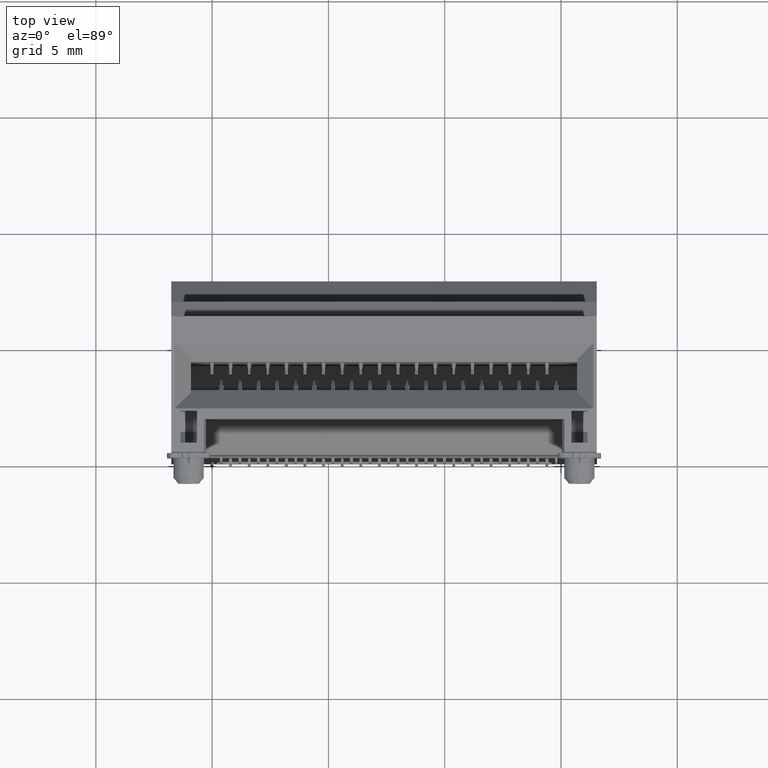
[diagram: clean part render]
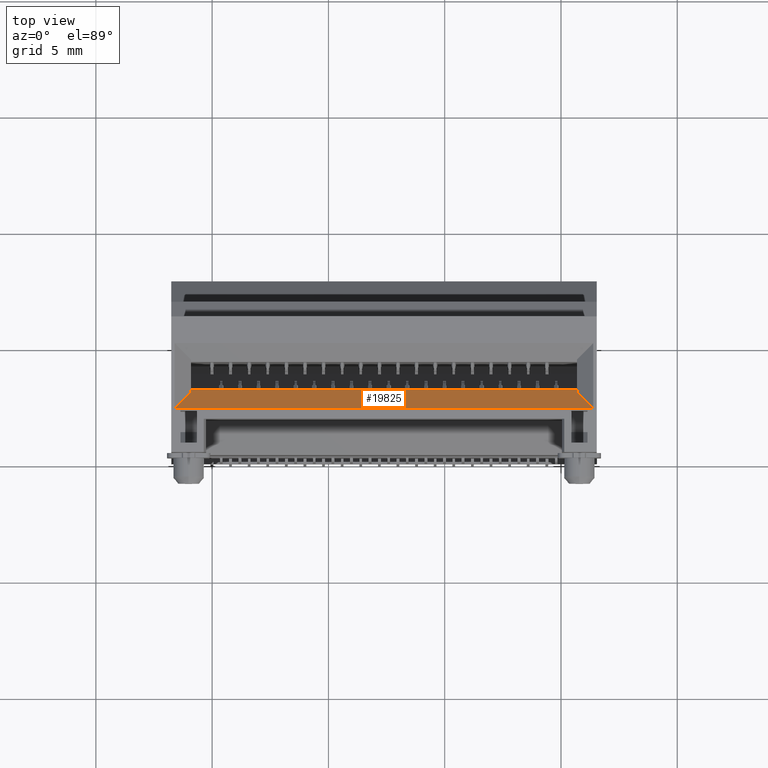
[diagram: same view with one face highlighted and labeled with its STEP entity id]
A machine part, top view. The second image highlights one B-rep face of the part: STEP entity #19825.
In plain terms, the highlighted planar face has unit normal (0, -0.7071, -0.7071).
Its self-contained STEP definition (entity closure, byte-faithful):
#6 = DIRECTION ( 'NONE',  ( -0.5773502691896247319, -0.5773502691896277295, 0.5773502691896247319 ) ) ;
#2566 = EDGE_CURVE ( 'NONE', #10589, #49674, #18752, .T. ) ;
#5256 = ORIENTED_EDGE ( 'NONE', *, *, #2566, .F. ) ;
#5684 = CARTESIAN_POINT ( 'NONE',  ( -10.47332802173360022, 3.231666666666670018, 7.863333333333329733 ) ) ;
#7547 = DIRECTION ( 'NONE',  ( 1.000000000000000000, 1.306267677693377761E-16, -9.479363256703868881E-17 ) ) ;
#7594 = EDGE_CURVE ( 'NONE', #10589, #9025, #49179, .T. ) ;
#8244 = ORIENTED_EDGE ( 'NONE', *, *, #61417, .T. ) ;
#9025 = VERTEX_POINT ( 'NONE', #66196 ) ;
#10589 = VERTEX_POINT ( 'NONE', #34548 ) ;
#11247 = LINE ( 'NONE', #37710, #16852 ) ;
#12222 = VECTOR ( 'NONE', #29599, 1000.000000000000000 ) ;
#12905 = CARTESIAN_POINT ( 'NONE',  ( -10.90999468840028008, 2.795000000000000373, 8.300000000000000711 ) ) ;
#13171 = VECTOR ( 'NONE', #66999, 1000.000000000000000 ) ;
#13717 = ORIENTED_EDGE ( 'NONE', *, *, #49860, .F. ) ;
#14953 = CARTESIAN_POINT ( 'NONE',  ( 5.690005311599730220, 2.895000000000000018, 8.200000000000001066 ) ) ;
#14994 = LINE ( 'NONE', #19177, #13171 ) ;
#16852 = VECTOR ( 'NONE', #7547, 1000.000000000000000 ) ;
#17130 = DIRECTION ( 'NONE',  ( -0.5773502691896257311, 0.5773502691896278405, -0.5773502691896238437 ) ) ;
#17615 = CARTESIAN_POINT ( 'NONE',  ( 5.253338644933060131, 3.231666666666675347, 7.863333333333329733 ) ) ;
#17821 = LINE ( 'NONE', #65817, #12222 ) ;
#18350 = ORIENTED_EDGE ( 'NONE', *, *, #18869, .F. ) ;
#18752 = LINE ( 'NONE', #54592, #30789 ) ;
#18869 = EDGE_CURVE ( 'NONE', #59336, #53057, #11247, .T. ) ;
#18978 = CARTESIAN_POINT ( 'NONE',  ( -10.90999468840028008, 2.895000000000000018, 8.200000000000001066 ) ) ;
#19177 = CARTESIAN_POINT ( 'NONE',  ( 5.690005311599709792, 9.150000000000000355, 1.945000000000034701 ) ) ;
#19825 = ADVANCED_FACE ( 'NONE', ( #66662 ), #23052, .F. ) ;
#20424 = VECTOR ( 'NONE', #17130, 1000.000000000000114 ) ;
#23052 = PLANE ( 'NONE',  #34785 ) ;
#29599 = DIRECTION ( 'NONE',  ( 0.0000000000000000000, 0.7071067811865500152, -0.7071067811865450192 ) ) ;
#30789 = VECTOR ( 'NONE', #48429, 1000.000000000000000 ) ;
#34548 = CARTESIAN_POINT ( 'NONE',  ( 6.390005311599730398, 2.095000000000000195, 9.000000000000000000 ) ) ;
#34785 = AXIS2_PLACEMENT_3D ( 'NONE', #65208, #47658, #60038 ) ;
#35243 = CARTESIAN_POINT ( 'NONE',  ( -11.60999468840027937, 2.095000000000000195, 9.000000000000000000 ) ) ;
#37710 = CARTESIAN_POINT ( 'NONE',  ( -10.90999468840026054, 2.895000000000000018, 8.200000000000001066 ) ) ;
#38146 = VECTOR ( 'NONE', #6, 1000.000000000000227 ) ;
#41758 = VERTEX_POINT ( 'NONE', #12905 ) ;
#42655 = EDGE_CURVE ( 'NONE', #41758, #59336, #17821, .T. ) ;
#47658 = DIRECTION ( 'NONE',  ( 2.533785289271959578E-17, -0.7071067811865450192, -0.7071067811865500152 ) ) ;
#48429 = DIRECTION ( 'NONE',  ( -1.000000000000000000, -1.306267677693377761E-16, 9.479363256703868881E-17 ) ) ;
#49179 = LINE ( 'NONE', #17615, #20424 ) ;
#49674 = VERTEX_POINT ( 'NONE', #35243 ) ;
#49860 = EDGE_CURVE ( 'NONE', #53057, #9025, #14994, .T. ) ;
#50193 = ORIENTED_EDGE ( 'NONE', *, *, #42655, .F. ) ;
#53057 = VERTEX_POINT ( 'NONE', #14953 ) ;
#53898 = LINE ( 'NONE', #5684, #38146 ) ;
#54592 = CARTESIAN_POINT ( 'NONE',  ( -11.75999468840026019, 2.095000000000000195, 9.000000000000000000 ) ) ;
#59336 = VERTEX_POINT ( 'NONE', #18978 ) ;
#60038 = DIRECTION ( 'NONE',  ( 0.0000000000000000000, -0.7071067811865500152, 0.7071067811865450192 ) ) ;
#61417 = EDGE_CURVE ( 'NONE', #41758, #49674, #53898, .T. ) ;
#65208 = CARTESIAN_POINT ( 'NONE',  ( -10.90999468840026054, 2.895000000000000018, 8.200000000000001066 ) ) ;
#65817 = CARTESIAN_POINT ( 'NONE',  ( -10.90999468840028008, 9.150000000000000355, 1.945000000000039808 ) ) ;
#66196 = CARTESIAN_POINT ( 'NONE',  ( 5.690005311599730220, 2.795000000000000373, 8.300000000000000711 ) ) ;
#66662 = FACE_OUTER_BOUND ( 'NONE', #76097, .T. ) ;
#66999 = DIRECTION ( 'NONE',  ( 2.027495427019340292E-15, -0.7071067811865500152, 0.7071067811865450192 ) ) ;
#67565 = ORIENTED_EDGE ( 'NONE', *, *, #7594, .T. ) ;
#76097 = EDGE_LOOP ( 'NONE', ( #13717, #18350, #50193, #8244, #5256, #67565 ) ) ;